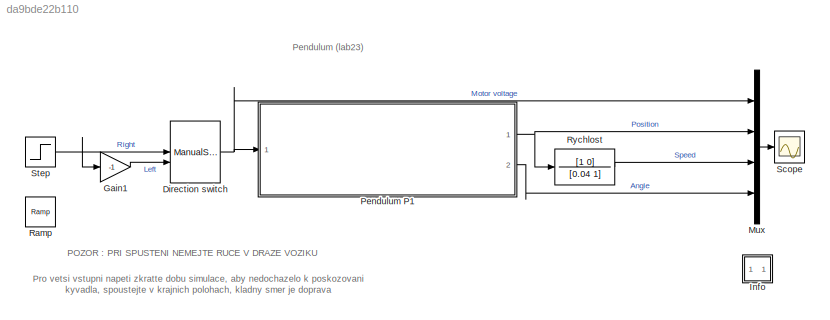
MODEL slx_da9bde22b110
KIND model
CONFIG AbsTol = auto
CONFIG EnableMultiTasking = on
CONFIG FixedStep = auto
CONFIG MaxStep = 0.001
CONFIG MinStep = auto
CONFIG RelTol = 1e-3
CONFIG SampleTimeConstraint = Unconstrained
CONFIG SolverName = ode5
CONFIG StartTime = 0.0
CONFIG StopTime = 2.5
BLOCK [ManualSwitch] Direction switch
  CurrentSetting = 0
BLOCK [Gain] Gain1
  Gain = -1
BLOCK [SubSystem] Info
  Ports = []
  RequestExecContextInheritance = off
BLOCK [Mux] Mux
  DisplayOption = bar
  Ports = [4, 1]
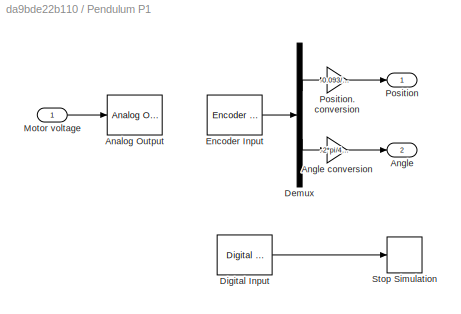
BLOCK [SubSystem] Pendulum P1
  InitFcn = warning off;
  Ports = [1, 2]
  RequestExecContextInheritance = off
BLOCK [Reference] Pendulum P1/Analog Output  REF=sldrtlib/Analog Output
  AttributesFormatString = Humusoft\nMF624 [auto]
  Ports = [1]
  SourceBlock = sldrtlib/Analog Output
  SourceProductBaseCode = WT
  SourceType = Simulink Desktop Real-Time Analog Output
BLOCK [Outport] Pendulum P1/Angle
  Port = 2
BLOCK [Gain] Pendulum P1/Angle conversion
  Gain = -2*pi/4096
BLOCK [Demux] Pendulum P1/Demux
  DisplayOption = none
  Outputs = 2
  Ports = [1, 2]
BLOCK [Reference] Pendulum P1/Digital Input  REF=sldrtlib/Digital Input
  AttributesFormatString = Humusoft\nMF624 [auto]
  Ports = [0, 1]
  SourceBlock = sldrtlib/Digital Input
  SourceProductBaseCode = WT
  SourceType = Simulink Desktop Real-Time Digital Input
BLOCK [Reference] Pendulum P1/Encoder Input  REF=sldrtlib/Encoder Input
  AttributesFormatString = Humusoft\nMF624 [auto]
  Ports = [0, 1]
  SourceBlock = sldrtlib/Encoder Input
  SourceProductBaseCode = WT
  SourceType = Simulink Desktop Real-Time Encoder Input
BLOCK [Inport] Pendulum P1/Motor voltage
BLOCK [Outport] Pendulum P1/Position
BLOCK [Gain] Pendulum P1/Position. conversion
  Gain = -0.093/4096
BLOCK [Stop] Pendulum P1/Stop Simulation
BLOCK [Reference] Ramp  REF=simulink/Sources/Ramp
  Ports = [0, 1]
  SourceBlock = simulink/Sources/Ramp
  SourceProductBaseCode = SL
  SourceType = Ramp
BLOCK [TransferFcn] Rychlost
  Denominator = [0.04 1]
  Numerator = [1 0]
BLOCK [Scope] Scope
  Floating = off
  NumInputPorts = 1
  Ports = [1]
  ScopeSpecificationString = Simulink.scopes.TimeScopeBlockCfg('CurrentConfiguration', extmgr.ConfigurationSet(extmgr.Configuration('Core','General UI',true,'FigureColor',[0.501960784313725 0.501960784313725 0.501960784313725]),extmgr.Configuration('Core','Source UI',true),extmgr.Configuration('Sources','WiredSimulink',true,'DataLogging',true,'DataLoggingVariableName','data','DataLoggingMaxPoints','500000','DataLoggingLimitDa...<+2871ch>
BLOCK [Step] Step
  After = 0.35
  SampleTime = 0
ANNOTATION (root): POZOR : PRI SPUSTENI NEMEJTE RUCE V DRAZE VOZIKU
ANNOTATION (root): Pendulum (lab23)
ANNOTATION (root): Pro vetsi vstupni napeti zkratte dobu simulace, aby nedochazelo k poskozovani kyvadla, spoustejte v krajnich polohach, kladny smer je doprava
ANNOTATION Info: C: J.Fuka 2007-2015 pro Matlab 2014b s RTWT
ANNOTATION Info: Kyvadlo P1 (lab. 23)
ANNOTATION Info: Merena data jsou ukladana po radcich do matice ty v pracovnim prostoru Matlabu. Prvni sloupec matice ty predstavuje cas a dalsi pak jednotlive promenne v poradi vstupu do bloku multiplexoru osciloskopu. Krome toho je jeste k dispozici samotny vektor casu tout. Prubehy velicin zobrazite napr. prikazem: plot(ty(:,1),ty(:,2:4)).
ANNOTATION Info: Nezapomente si ulozit namerena data napr. prikazem: save ty
ANNOTATION Info: Umisteni voziku
ANNOTATION Info: Urceno pro mereni prechodovych charakteristik realneho systemu inverzni kyvadlo. Periodu vzorkovani Ts volte v rozsahu 0.0005 s < Ts < 0.001 s (dop. Ts = 0.001 s).
ANNOTATION Info: Ve formatu ASCII je pak ulozite prikazem: save ty -ascii
ANNOTATION Info: Vozik presunte do leve krajni polohy. Po spusteni simulace dojede k prave krajni poloze. Presunte jej ke koncovemu spinaci a zmente znamenko zesileni. Vozik se vrati do vychozi polohy. Pri vetsim vstupnim napeti zkratte dobu simulace!!!
NET Direction switch:1 -> Mux:1, Pendulum P1:1
LINE Gain1:1 -> Direction switch:2
LINE Mux:1 -> Scope:1
LINE Pendulum P1/Angle conversion:1 -> Pendulum P1/Angle:1
LINE Pendulum P1/Demux:1 -> Pendulum P1/Position. conversion:1
LINE Pendulum P1/Demux:2 -> Pendulum P1/Angle conversion:1
LINE Pendulum P1/Digital Input:1 -> Pendulum P1/Stop Simulation:1
LINE Pendulum P1/Encoder Input:1 -> Pendulum P1/Demux:1
LINE Pendulum P1/Motor voltage:1 -> Pendulum P1/Analog Output:1
LINE Pendulum P1/Position. conversion:1 -> Pendulum P1/Position:1
NET Pendulum P1:1 -> Mux:2, Rychlost:1
LINE Pendulum P1:2 -> Mux:4
LINE Rychlost:1 -> Mux:3
NET Step:1 -> Direction switch:1, Gain1:1
note: NET lines group one-source signal fan-out (src -> all destinations, sorted); 1:1 wires keep LINE
